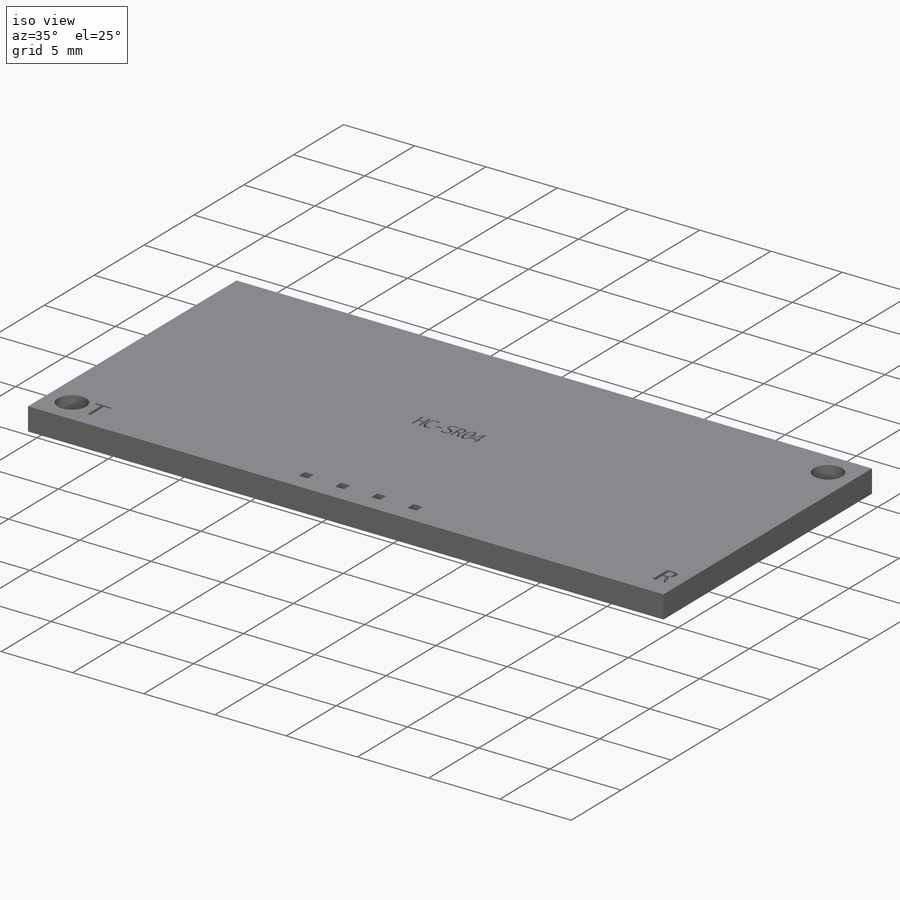
[diagram: iso view]
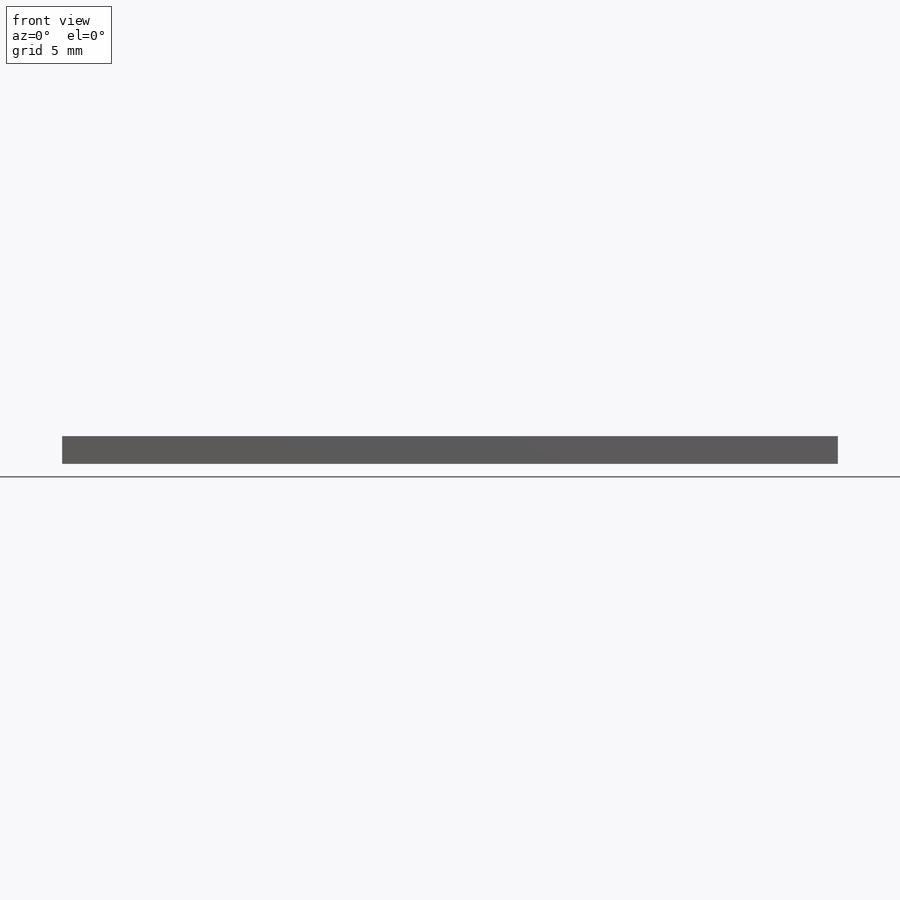
[diagram: front view]
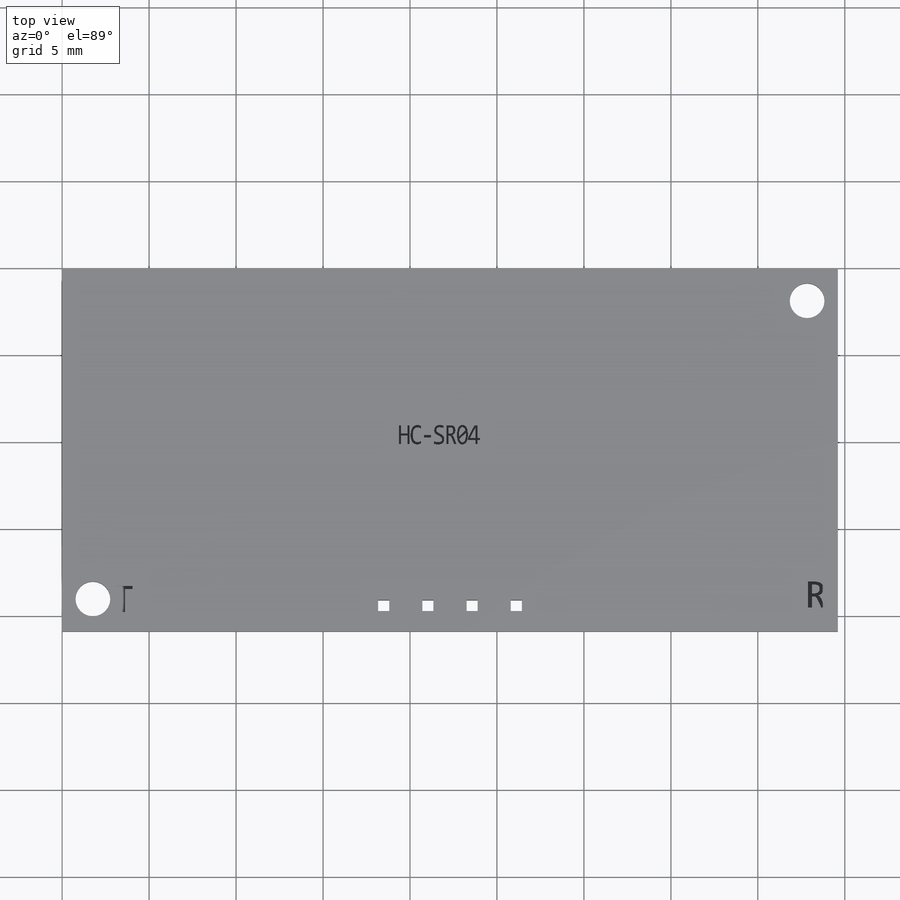
[diagram: top view]
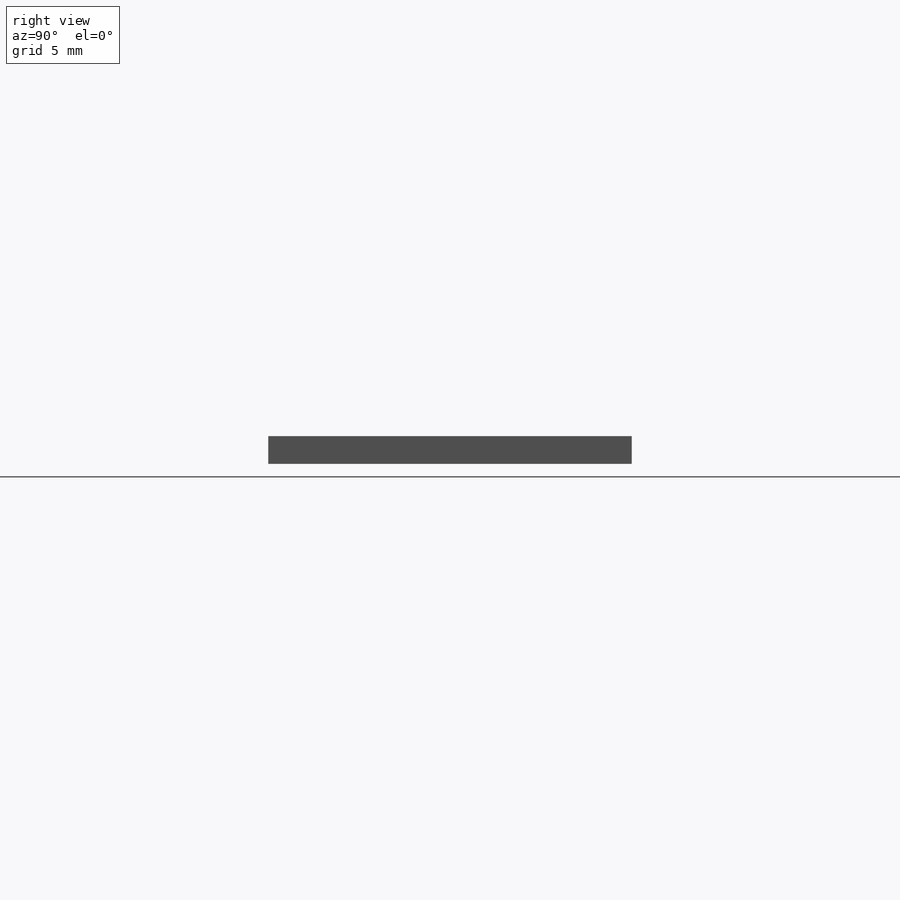
[diagram: right view]
SOLIDWORKS PART (.sldprt)
format: sldprt  version: not decoded by parser v0  size: 343,552 bytes
history: native  units: mm
features: plane x4, sketch x4, cut_extrude x3, material x1, extrude x1 (+9 scaffold rows collapsed)
feature tree (22):
  scaffold x9  (default folders/planes/origin — collapsed)
  material  "Material <sin especificar>"
  plane  "Alzado"
  plane  "Planta"
  plane  "Vista lateral"
  sketch  "Croquis1"  dims[D1=20.9mm]
  extrude  "Saliente-Extruir2"  Depth=1.6mm
  plane  "Plano1"  Offset=2.34563mm
  sketch  "Croquis3"
  cut_extrude  "Cortar-Extruir1"  Depth=1mm
  sketch  "Croquis4"
  cut_extrude  "Cortar-Extruir2"  Depth=1mm
  sketch  "Croquis5"  dims[c1.D1=0.9525mm c1.D2=0.9525mm c1.D3=0.636mm c2.D2=1.905mm c2.D3=0.636mm c2.D4=1.905mm]
  cut_extrude  "Cortar-Extruir4"  Depth=10mm
decode coverage: 6 of 8 modeling features carry decoded parameters
note: suppression state not decoded; provenance and decode notes live in map.json
